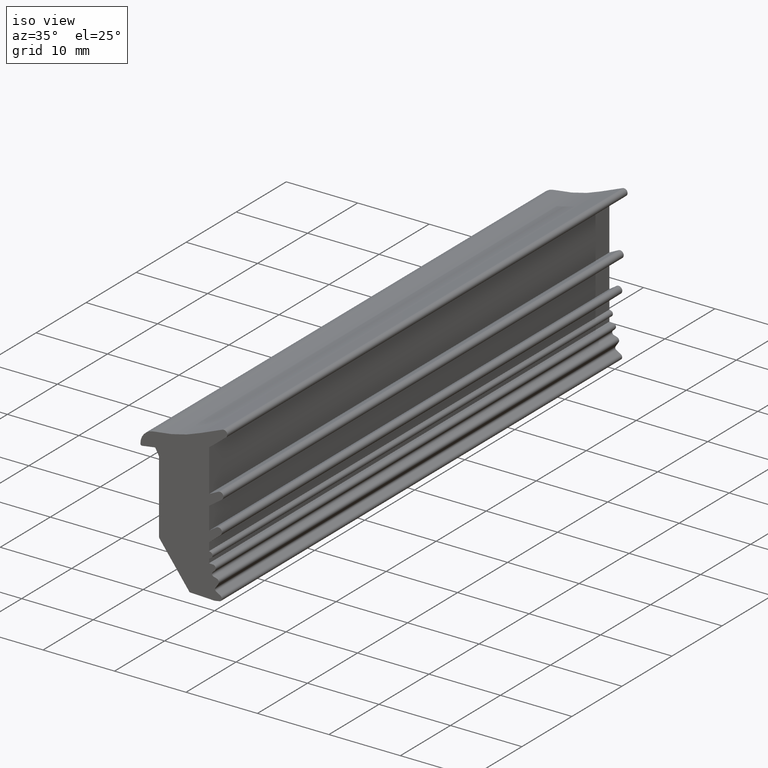
[diagram: clean part render]
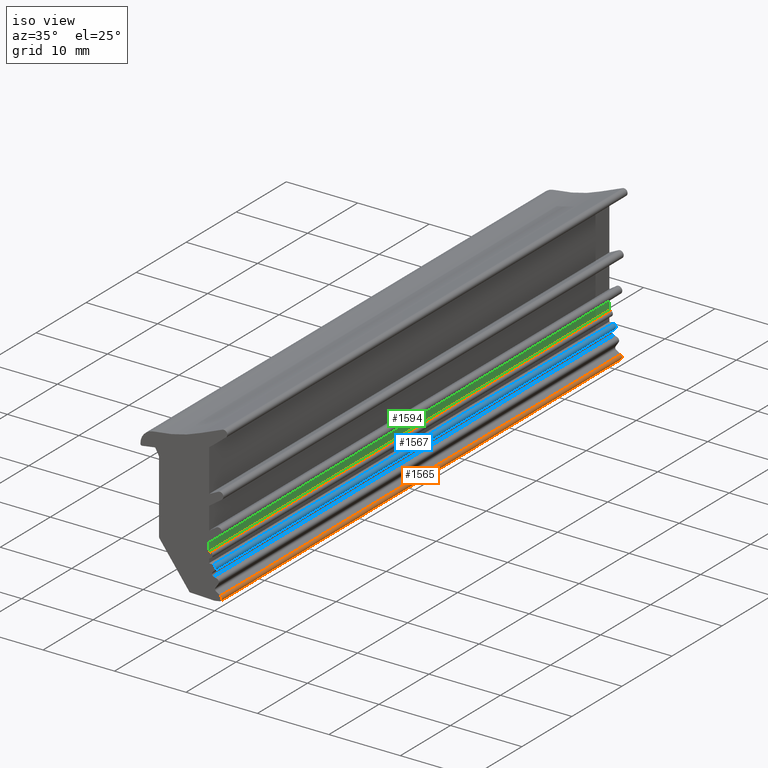
[diagram: same view with three faces highlighted in distinct colors, each labeled with its STEP entity id]
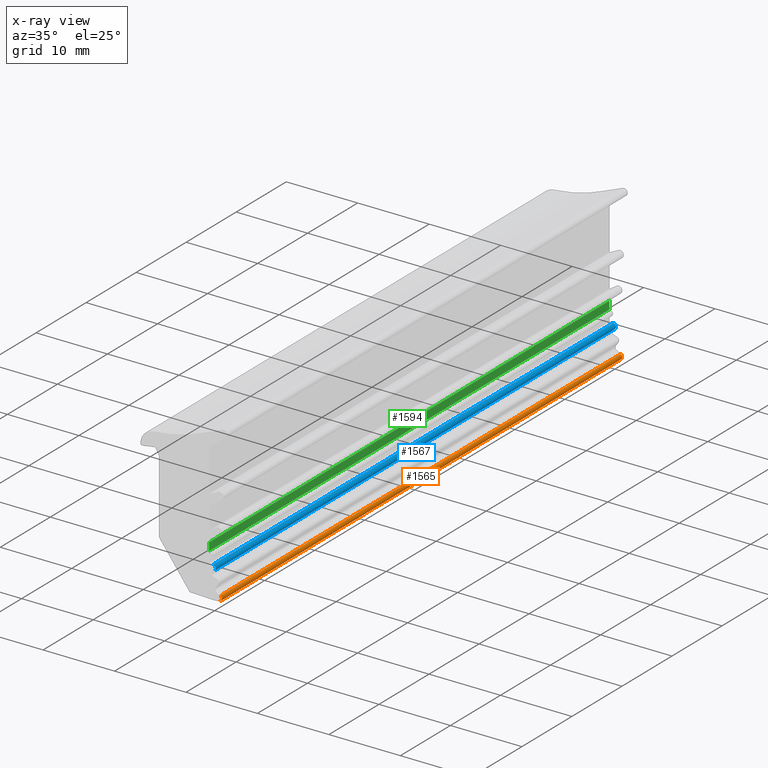
[diagram: x-ray of the same camera — body ghosted, the three highlighted faces saturated]
A machine part, iso view with three faces highlighted in distinct colors.
The next image is the same camera in x-ray (body ghosted, the three faces saturated) — at least one of them is partly hidden behind the body in this view.
Their STEP definitions:

[orange] entity #1565 — the highlighted cylindrical surface (edge-blend (fillet) strip) has radius 0.4 mm, axis along (0, 1, 0).
#2 = AXIS2_PLACEMENT_3D ( 'NONE', #755, #939, #938 ) ;
#19 = AXIS2_PLACEMENT_3D ( 'NONE', #524, #441, #443 ) ;
#286 = EDGE_LOOP ( 'NONE', ( #316, #323, #315, #319 ) ) ;
#315 = ORIENTED_EDGE ( 'NONE', *, *, #1967, .T. ) ;
#316 = ORIENTED_EDGE ( 'NONE', *, *, #2013, .T. ) ;
#319 = ORIENTED_EDGE ( 'NONE', *, *, #1922, .T. ) ;
#323 = ORIENTED_EDGE ( 'NONE', *, *, #2011, .T. ) ;
#441 = DIRECTION ( 'NONE',  ( -0.0000000000000000000, -1.000000000000000000, -0.0000000000000000000 ) ) ;
#443 = DIRECTION ( 'NONE',  ( 0.0000000000000000000, 0.0000000000000000000, 1.000000000000000000 ) ) ;
#477 = CARTESIAN_POINT ( 'NONE',  ( 0.8264968148927975800, 80.00000000000000000, 0.8552252589932785000 ) ) ;
#524 = CARTESIAN_POINT ( 'NONE',  ( 0.6203005368688520000, 80.00000000000000000, 0.5124671884404880000 ) ) ;
#530 = DIRECTION ( 'NONE',  ( -0.0000000000000000000, -1.000000000000000000, -0.0000000000000000000 ) ) ;
#611 = DIRECTION ( 'NONE',  ( 0.0000000000000000000, 1.000000000000000000, -0.0000000000000000000 ) ) ;
#613 = CARTESIAN_POINT ( 'NONE',  ( 0.6880502510813671900, 80.00000000000000000, 0.1182464682542862500 ) ) ;
#755 = CARTESIAN_POINT ( 'NONE',  ( 0.6203005368688520000, 0.0000000000000000000, 0.5124671884404880000 ) ) ;
#938 = DIRECTION ( 'NONE',  ( 0.0000000000000000000, 0.0000000000000000000, 1.000000000000000000 ) ) ;
#939 = DIRECTION ( 'NONE',  ( 0.0000000000000000000, 1.000000000000000000, 0.0000000000000000000 ) ) ;
#1036 = VERTEX_POINT ( 'NONE', #1140 ) ;
#1045 = VERTEX_POINT ( 'NONE', #1100 ) ;
#1100 = CARTESIAN_POINT ( 'NONE',  ( 0.6880502510814149300, 80.00000000000000000, 0.1182464682542944300 ) ) ;
#1140 = CARTESIAN_POINT ( 'NONE',  ( 0.6880502510814149300, -6.938893903907228400E-015, 0.1182464682542944300 ) ) ;
#1143 = VERTEX_POINT ( 'NONE', #1207 ) ;
#1153 = VERTEX_POINT ( 'NONE', #1199 ) ;
#1199 = CARTESIAN_POINT ( 'NONE',  ( 0.8264968148928887300, 80.00000000000000000, 0.8552252589932266600 ) ) ;
#1207 = CARTESIAN_POINT ( 'NONE',  ( 0.8264968148928887300, 0.0000000000000000000, 0.8552252589932266600 ) ) ;
#1256 = CARTESIAN_POINT ( 'NONE',  ( 0.6203005368688520000, 80.00000000000000000, 0.5124671884404880000 ) ) ;
#1264 = DIRECTION ( 'NONE',  ( 0.0000000000000000000, 1.000000000000000000, 0.0000000000000000000 ) ) ;
#1265 = DIRECTION ( 'NONE',  ( 0.0000000000000000000, 0.0000000000000000000, 1.000000000000000000 ) ) ;
#1356 = LINE ( 'NONE', #477, #1384 ) ;
#1383 = CIRCLE ( 'NONE', #19, 0.3999999999999999700 ) ;
#1384 = VECTOR ( 'NONE', #530, 1000.000000000000000 ) ;
#1426 = CIRCLE ( 'NONE', #2, 0.3999999999999999700 ) ;
#1487 = VECTOR ( 'NONE', #611, 1000.000000000000000 ) ;
#1488 = LINE ( 'NONE', #613, #1487 ) ;
#1565 = ADVANCED_FACE ( 'NONE', ( #1716 ), #1715, .T. ) ;
#1715 = CYLINDRICAL_SURFACE ( 'NONE', #1935, 0.3999999999999999700 ) ;
#1716 = FACE_OUTER_BOUND ( 'NONE', #286, .T. ) ;
#1922 = EDGE_CURVE ( 'NONE', #1036, #1045, #1488, .T. ) ;
#1935 = AXIS2_PLACEMENT_3D ( 'NONE', #1256, #1264, #1265 ) ;
#1967 = EDGE_CURVE ( 'NONE', #1143, #1036, #1426, .T. ) ;
#2011 = EDGE_CURVE ( 'NONE', #1153, #1143, #1356, .T. ) ;
#2013 = EDGE_CURVE ( 'NONE', #1045, #1153, #1383, .T. ) ;

[blue] entity #1567 — the highlighted cylindrical surface (edge-blend (fillet) strip) has radius 0.4 mm, axis along (0, 1, 0).
#32 = AXIS2_PLACEMENT_3D ( 'NONE', #676, #675, #673 ) ;
#48 = AXIS2_PLACEMENT_3D ( 'NONE', #710, #708, #707 ) ;
#102 = ORIENTED_EDGE ( 'NONE', *, *, #2029, .T. ) ;
#108 = ORIENTED_EDGE ( 'NONE', *, *, #1895, .T. ) ;
#121 = ORIENTED_EDGE ( 'NONE', *, *, #1955, .T. ) ;
#151 = ORIENTED_EDGE ( 'NONE', *, *, #1865, .T. ) ;
#261 = EDGE_LOOP ( 'NONE', ( #151, #121, #108, #102 ) ) ;
#412 = DIRECTION ( 'NONE',  ( 0.0000000000000000000, 1.000000000000000000, 0.0000000000000000000 ) ) ;
#424 = CARTESIAN_POINT ( 'NONE',  ( 0.03549229728957523100, 80.00000000000000000, 3.823360732850229000 ) ) ;
#665 = CARTESIAN_POINT ( 'NONE',  ( -0.2255219546195986500, 80.00000000000000000, 4.512110354142635100 ) ) ;
#673 = DIRECTION ( 'NONE',  ( 0.0000000000000000000, 0.0000000000000000000, 1.000000000000000000 ) ) ;
#675 = DIRECTION ( 'NONE',  ( 0.0000000000000000000, 1.000000000000000000, 0.0000000000000000000 ) ) ;
#676 = CARTESIAN_POINT ( 'NONE',  ( -0.2410044699727859900, 0.0000000000000000000, 4.112410101805539700 ) ) ;
#707 = DIRECTION ( 'NONE',  ( -1.761828530288943900E-015, 0.0000000000000000000, 1.000000000000000000 ) ) ;
#708 = DIRECTION ( 'NONE',  ( -0.0000000000000000000, -1.000000000000000000, -0.0000000000000000000 ) ) ;
#710 = CARTESIAN_POINT ( 'NONE',  ( -0.2410044699727859900, 80.00000000000000000, 4.112410101805539700 ) ) ;
#760 = CARTESIAN_POINT ( 'NONE',  ( -0.2255219546204829400, 80.00000000000000000, 4.512110354142669700 ) ) ;
#856 = DIRECTION ( 'NONE',  ( -0.0000000000000000000, -1.000000000000000000, -0.0000000000000000000 ) ) ;
#925 = CARTESIAN_POINT ( 'NONE',  ( 0.03549229728822021800, -1.387778780781445700E-014, 3.823360732848923900 ) ) ;
#943 = VERTEX_POINT ( 'NONE', #925 ) ;
#1058 = VERTEX_POINT ( 'NONE', #1107 ) ;
#1107 = CARTESIAN_POINT ( 'NONE',  ( 0.03549229728822021800, 80.00000000000000000, 3.823360732848923900 ) ) ;
#1159 = VERTEX_POINT ( 'NONE', #1202 ) ;
#1167 = VERTEX_POINT ( 'NONE', #665 ) ;
#1202 = CARTESIAN_POINT ( 'NONE',  ( -0.2255219546195987000, -2.081668171172168500E-014, 4.512110354142635100 ) ) ;
#1235 = CARTESIAN_POINT ( 'NONE',  ( -0.2410044699727859900, 80.00000000000000000, 4.112410101805539700 ) ) ;
#1246 = DIRECTION ( 'NONE',  ( 0.0000000000000000000, 1.000000000000000000, 0.0000000000000000000 ) ) ;
#1284 = DIRECTION ( 'NONE',  ( 0.0000000000000000000, 0.0000000000000000000, 1.000000000000000000 ) ) ;
#1419 = LINE ( 'NONE', #424, #1549 ) ;
#1448 = VECTOR ( 'NONE', #856, 1000.000000000000000 ) ;
#1461 = LINE ( 'NONE', #760, #1448 ) ;
#1515 = CIRCLE ( 'NONE', #32, 0.4000000000000001900 ) ;
#1528 = CIRCLE ( 'NONE', #48, 0.4000000000000001900 ) ;
#1549 = VECTOR ( 'NONE', #412, 1000.000000000000000 ) ;
#1567 = ADVANCED_FACE ( 'NONE', ( #1800 ), #1799, .T. ) ;
#1799 = CYLINDRICAL_SURFACE ( 'NONE', #1949, 0.4000000000000001900 ) ;
#1800 = FACE_OUTER_BOUND ( 'NONE', #261, .T. ) ;
#1865 = EDGE_CURVE ( 'NONE', #1058, #1167, #1528, .T. ) ;
#1895 = EDGE_CURVE ( 'NONE', #1159, #943, #1515, .T. ) ;
#1949 = AXIS2_PLACEMENT_3D ( 'NONE', #1235, #1246, #1284 ) ;
#1955 = EDGE_CURVE ( 'NONE', #1167, #1159, #1461, .T. ) ;
#2029 = EDGE_CURVE ( 'NONE', #943, #1058, #1419, .T. ) ;

[green] entity #1594 — the highlighted planar face has unit normal (-1, 0, -0).
#246 = ORIENTED_EDGE ( 'NONE', *, *, #1959, .T. ) ;
#292 = EDGE_LOOP ( 'NONE', ( #246, #336, #337, #347 ) ) ;
#336 = ORIENTED_EDGE ( 'NONE', *, *, #1948, .F. ) ;
#337 = ORIENTED_EDGE ( 'NONE', *, *, #2037, .F. ) ;
#347 = ORIENTED_EDGE ( 'NONE', *, *, #2039, .F. ) ;
#383 = VECTOR ( 'NONE', #518, 1000.000000000000000 ) ;
#385 = VECTOR ( 'NONE', #493, 1000.000000000000000 ) ;
#409 = CARTESIAN_POINT ( 'NONE',  ( -0.7736040137149795500, 80.00200000000001000, 6.068606923868709500 ) ) ;
#493 = DIRECTION ( 'NONE',  ( 1.187458898974980100E-016, -0.0000000000000000000, -1.000000000000000000 ) ) ;
#518 = DIRECTION ( 'NONE',  ( -0.0000000000000000000, -1.000000000000000000, -0.0000000000000000000 ) ) ;
#523 = CARTESIAN_POINT ( 'NONE',  ( -0.7736040137149800000, 80.00000000000500200, 9.616927349212019700 ) ) ;
#785 = CARTESIAN_POINT ( 'NONE',  ( -0.7736040137149800000, 0.0000000000000000000, 9.616927349212019700 ) ) ;
#788 = DIRECTION ( 'NONE',  ( -1.187458898974980100E-016, 0.0000000000000000000, 1.000000000000000000 ) ) ;
#790 = DIRECTION ( 'NONE',  ( -1.000000000000000000, 0.0000000000000000000, -1.187458898974980100E-016 ) ) ;
#796 = CARTESIAN_POINT ( 'NONE',  ( -0.7736040137141583200, 80.00000000000000000, 7.178173402964675100 ) ) ;
#812 = CARTESIAN_POINT ( 'NONE',  ( -0.7736040137147056600, 80.00000000000166300, 7.178173402965331500 ) ) ;
#822 = PLANE ( 'NONE',  #2084 ) ;
#855 = CARTESIAN_POINT ( 'NONE',  ( -0.7736040137149800000, 80.00200000000001000, 9.616927349212019700 ) ) ;
#859 = DIRECTION ( 'NONE',  ( -0.0000000000000000000, -1.000000000000000000, 0.0000000000000000000 ) ) ;
#929 = DIRECTION ( 'NONE',  ( -1.187458898974980100E-016, 0.0000000000000000000, 1.000000000000000000 ) ) ;
#936 = VERTEX_POINT ( 'NONE', #1134 ) ;
#1046 = VERTEX_POINT ( 'NONE', #1101 ) ;
#1101 = CARTESIAN_POINT ( 'NONE',  ( -0.7736040137149795500, 80.00000000000250100, 6.068606907431513000 ) ) ;
#1134 = CARTESIAN_POINT ( 'NONE',  ( -0.7736040137147056600, 0.0000000000000000000, 7.178173402965331500 ) ) ;
#1151 = VERTEX_POINT ( 'NONE', #1196 ) ;
#1179 = VERTEX_POINT ( 'NONE', #812 ) ;
#1196 = CARTESIAN_POINT ( 'NONE',  ( -0.7736040137149795500, 0.0000000000000000000, 6.068606907431513000 ) ) ;
#1441 = VECTOR ( 'NONE', #859, 1000.000000000000000 ) ;
#1442 = LINE ( 'NONE', #796, #1441 ) ;
#1460 = VECTOR ( 'NONE', #929, 1000.000000000000000 ) ;
#1466 = LINE ( 'NONE', #785, #1460 ) ;
#1546 = LINE ( 'NONE', #523, #385 ) ;
#1551 = LINE ( 'NONE', #409, #383 ) ;
#1594 = ADVANCED_FACE ( 'NONE', ( #1631 ), #822, .F. ) ;
#1631 = FACE_OUTER_BOUND ( 'NONE', #292, .T. ) ;
#1948 = EDGE_CURVE ( 'NONE', #1151, #936, #1466, .T. ) ;
#1959 = EDGE_CURVE ( 'NONE', #1179, #936, #1442, .T. ) ;
#2037 = EDGE_CURVE ( 'NONE', #1046, #1151, #1551, .T. ) ;
#2039 = EDGE_CURVE ( 'NONE', #1179, #1046, #1546, .T. ) ;
#2084 = AXIS2_PLACEMENT_3D ( 'NONE', #855, #790, #788 ) ;